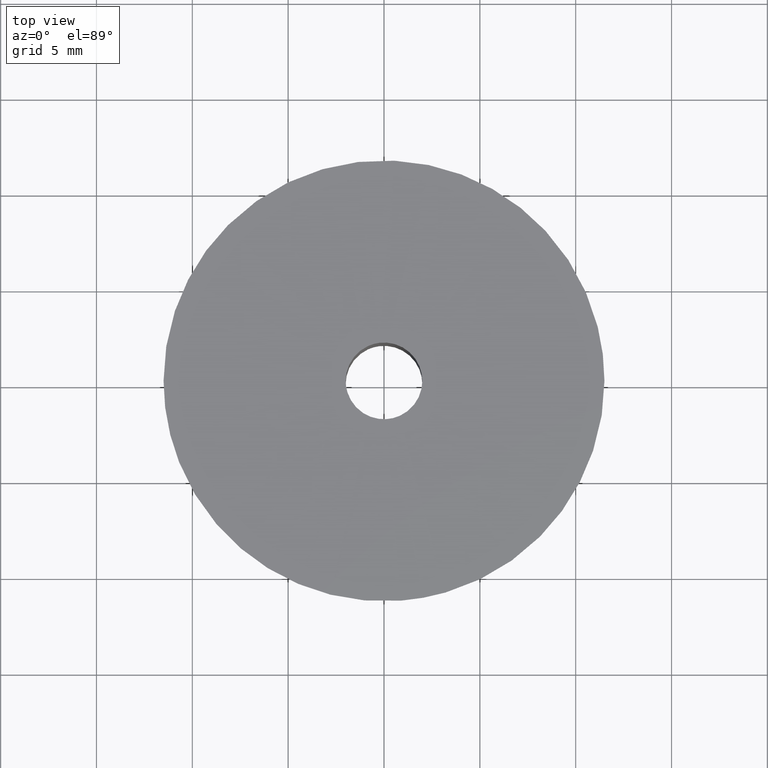
[diagram: clean part render]
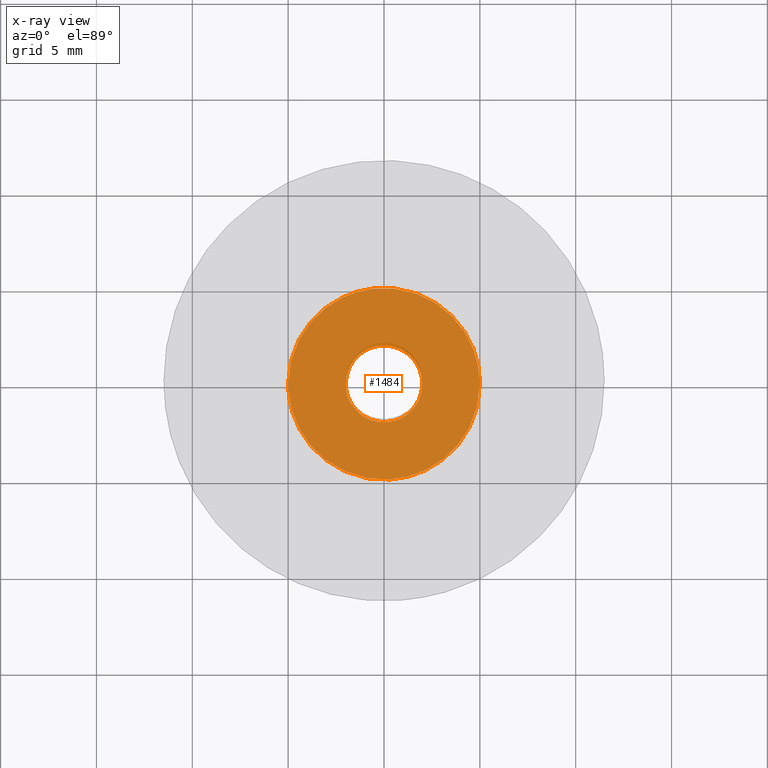
[diagram: x-ray — body ghosted, one internal face saturated and labeled with its STEP entity id]
A machine part, top view, then the same camera in x-ray: the body is ghosted and one INTERNAL B-rep face — a face not visible from any outside direction — is saturated and labeled: STEP entity #1484.
In plain terms, the highlighted face is a freeform B-spline surface patch.
Its self-contained STEP definition (entity closure, byte-faithful):
#754=CARTESIAN_POINT('',(-0.236065917800784,1.986019356009974,10.799999999999800));
#755=VERTEX_POINT('',#754);
#761=CARTESIAN_POINT('',(2.0,0.0,10.799999999999800));
#762=VERTEX_POINT('',#761);
#763=CARTESIAN_POINT('',(-0.236065917800784,1.986019356009974,10.799999999999798));
#764=CARTESIAN_POINT('',(-0.118446950060566,2.0,10.799999999999804));
#765=CARTESIAN_POINT('',(0.0,2.0,10.799999999999800));
#766=CARTESIAN_POINT('',(2.000000000000000,2.000000000000000,10.799999999999800));
#767=CARTESIAN_POINT('',(2.0,0.0,10.799999999999800));
#775=(BOUNDED_CURVE()B_SPLINE_CURVE(2,(#763,#764,#765,#766,#767),.UNSPECIFIED.,.F.,.U.)B_SPLINE_CURVE_WITH_KNOTS((3,2,3),(0.229562690640437,0.250000000000000,0.500000000000000),.UNSPECIFIED.)CURVE()GEOMETRIC_REPRESENTATION_ITEM()RATIONAL_B_SPLINE_CURVE((0.956027179761807,0.976056202711165,1.0,0.707106781186548,1.0))REPRESENTATION_ITEM(''));
#776=EDGE_CURVE('',#755,#762,#775,.T.);
#778=CARTESIAN_POINT('',(0.122097079102479,-1.996269596841730,10.799999999999800));
#779=VERTEX_POINT('',#778);
#780=CARTESIAN_POINT('',(2.0,0.0,10.799999999999800));
#781=CARTESIAN_POINT('',(2.000000000000000,-1.881412133749522,10.799999999999800));
#782=CARTESIAN_POINT('',(0.122097079102479,-1.996269596841730,10.799999999999802));
#790=(BOUNDED_CURVE()B_SPLINE_CURVE(2,(#780,#781,#782),.UNSPECIFIED.,.F.,.U.)B_SPLINE_CURVE_WITH_KNOTS((3,3),(0.500000000000000,0.739332962236305),.UNSPECIFIED.)CURVE()GEOMETRIC_REPRESENTATION_ITEM()RATIONAL_B_SPLINE_CURVE((1.0,0.719603993289801,0.976072041661064))REPRESENTATION_ITEM(''));
#791=EDGE_CURVE('',#762,#779,#790,.T.);
#865=CARTESIAN_POINT('',(-2.0,0.0,10.799999999999800));
#866=VERTEX_POINT('',#865);
#867=CARTESIAN_POINT('',(0.122097079102479,-1.996269596841730,10.799999999999802));
#868=CARTESIAN_POINT('',(0.061105526630035,-2.0,10.799999999999800));
#869=CARTESIAN_POINT('',(0.0,-2.0,10.799999999999800));
#870=CARTESIAN_POINT('',(-2.000000000000000,-2.000000000000000,10.799999999999800));
#871=CARTESIAN_POINT('',(-2.0,0.0,10.799999999999800));
#879=(BOUNDED_CURVE()B_SPLINE_CURVE(2,(#867,#868,#869,#870,#871),.UNSPECIFIED.,.F.,.U.)B_SPLINE_CURVE_WITH_KNOTS((3,2,3),(0.739332962236304,0.750000000000000,1.0),.UNSPECIFIED.)CURVE()GEOMETRIC_REPRESENTATION_ITEM()RATIONAL_B_SPLINE_CURVE((0.976072041661062,0.987502787896746,1.0,0.707106781186548,1.0))REPRESENTATION_ITEM(''));
#880=EDGE_CURVE('',#779,#866,#879,.T.);
#882=CARTESIAN_POINT('',(-2.0,0.0,10.799999999999800));
#883=CARTESIAN_POINT('',(-2.000000000000000,1.776351350111119,10.799999999999800));
#884=CARTESIAN_POINT('',(-0.236065917800784,1.986019356009974,10.799999999999798));
#892=(BOUNDED_CURVE()B_SPLINE_CURVE(2,(#882,#883,#884),.UNSPECIFIED.,.F.,.U.)B_SPLINE_CURVE_WITH_KNOTS((3,3),(0.0,0.229562690640437),.UNSPECIFIED.)CURVE()GEOMETRIC_REPRESENTATION_ITEM()RATIONAL_B_SPLINE_CURVE((1.0,0.731050578475383,0.956027179761807))REPRESENTATION_ITEM(''));
#893=EDGE_CURVE('',#866,#755,#892,.T.);
#925=CARTESIAN_POINT('',(-0.590168625237022,4.965047934690988,10.799999999999720));
#926=VERTEX_POINT('',#925);
#927=CARTESIAN_POINT('',(5.0,0.0,10.799999999999800));
#928=VERTEX_POINT('',#927);
#929=CARTESIAN_POINT('',(-0.590168625237022,4.965047934690989,10.799999999999727));
#930=CARTESIAN_POINT('',(-0.296119310767451,4.999999999999999,10.799999999999798));
#931=CARTESIAN_POINT('',(0.0,5.0,10.799999999999800));
#932=CARTESIAN_POINT('',(5.000000000000001,5.000000000000001,10.799999999999800));
#933=CARTESIAN_POINT('',(5.0,0.0,10.799999999999800));
#941=(BOUNDED_CURVE()B_SPLINE_CURVE(2,(#929,#930,#931,#932,#933),.UNSPECIFIED.,.F.,.U.)B_SPLINE_CURVE_WITH_KNOTS((3,2,3),(0.229562560247581,0.250000000000000,0.500000000000000),.UNSPECIFIED.)CURVE()GEOMETRIC_REPRESENTATION_ITEM()RATIONAL_B_SPLINE_CURVE((0.956026924186102,0.976056049946432,1.0,0.707106781186548,1.0))REPRESENTATION_ITEM(''));
#942=EDGE_CURVE('',#926,#928,#941,.T.);
#983=CARTESIAN_POINT('',(0.305234977263521,-4.990674464297897,10.799999999999571));
#984=VERTEX_POINT('',#983);
#990=CARTESIAN_POINT('',(5.0,0.0,10.799999999999800));
#991=CARTESIAN_POINT('',(4.999999999999999,-4.703537624338884,10.799999999999798));
#992=CARTESIAN_POINT('',(0.305234977263521,-4.990674464297897,10.799999999999562));
#1000=(BOUNDED_CURVE()B_SPLINE_CURVE(2,(#990,#991,#992),.UNSPECIFIED.,.F.,.U.)B_SPLINE_CURVE_WITH_KNOTS((3,3),(0.500000000000000,0.739333229166308),.UNSPECIFIED.)CURVE()GEOMETRIC_REPRESENTATION_ITEM()RATIONAL_B_SPLINE_CURVE((1.0,0.719603680561850,0.976072613743540))REPRESENTATION_ITEM(''));
#1001=EDGE_CURVE('',#928,#984,#1000,.T.);
#1024=CARTESIAN_POINT('',(-5.0,0.0,10.799999999999800));
#1025=VERTEX_POINT('',#1024);
#1026=CARTESIAN_POINT('',(-5.0,0.0,10.799999999999800));
#1027=CARTESIAN_POINT('',(-5.0,4.440874924842770,10.799999999999800));
#1028=CARTESIAN_POINT('',(-0.590168625237022,4.965047934690989,10.799999999999727));
#1036=(BOUNDED_CURVE()B_SPLINE_CURVE(2,(#1026,#1027,#1028),.UNSPECIFIED.,.F.,.U.)B_SPLINE_CURVE_WITH_KNOTS((3,3),(0.0,0.229562560247581),.UNSPECIFIED.)CURVE()GEOMETRIC_REPRESENTATION_ITEM()RATIONAL_B_SPLINE_CURVE((1.0,0.731050731240115,0.956026924186102))REPRESENTATION_ITEM(''));
#1037=EDGE_CURVE('',#1025,#926,#1036,.T.);
#1039=CARTESIAN_POINT('',(0.305234977263521,-4.990674464297897,10.799999999999562));
#1040=CARTESIAN_POINT('',(0.152759945464380,-5.0,10.799999999999804));
#1041=CARTESIAN_POINT('',(0.0,-5.0,10.799999999999800));
#1042=CARTESIAN_POINT('',(-5.000000000000001,-5.000000000000001,10.799999999999800));
#1043=CARTESIAN_POINT('',(-5.0,0.0,10.799999999999800));
#1051=(BOUNDED_CURVE()B_SPLINE_CURVE(2,(#1039,#1040,#1041,#1042,#1043),.UNSPECIFIED.,.F.,.U.)B_SPLINE_CURVE_WITH_KNOTS((3,2,3),(0.739333229166308,0.750000000000000,1.0),.UNSPECIFIED.)CURVE()GEOMETRIC_REPRESENTATION_ITEM()RATIONAL_B_SPLINE_CURVE((0.976072613743540,0.987503100624697,1.0,0.707106781186548,1.0))REPRESENTATION_ITEM(''));
#1052=EDGE_CURVE('',#984,#1025,#1051,.T.);
#1467=CARTESIAN_POINT('',(-5.499499980618060,-5.499378285062297,10.799999999999800));
#1468=CARTESIAN_POINT('',(5.499500248838961,-5.499378285062297,10.799999999999800));
#1469=CARTESIAN_POINT('',(-5.499499980618060,5.499409041059002,10.799999999999800));
#1470=CARTESIAN_POINT('',(5.499500248838961,5.499409041059002,10.799999999999800));
#1471=B_SPLINE_SURFACE_WITH_KNOTS('',1,1,((#1467,#1469),(#1468,#1470)),.UNSPECIFIED.,.F.,.F.,.U.,(2,2),(2,2),(0.0,10.999000229457019),(0.0,10.998787326121301),.UNSPECIFIED.);
#1472=ORIENTED_EDGE('',*,*,#1037,.T.);
#1473=ORIENTED_EDGE('',*,*,#942,.T.);
#1474=ORIENTED_EDGE('',*,*,#1001,.T.);
#1475=ORIENTED_EDGE('',*,*,#1052,.T.);
#1476=EDGE_LOOP('',(#1472,#1473,#1474,#1475));
#1477=FACE_OUTER_BOUND('',#1476,.T.);
#1478=ORIENTED_EDGE('',*,*,#791,.F.);
#1479=ORIENTED_EDGE('',*,*,#776,.F.);
#1480=ORIENTED_EDGE('',*,*,#893,.F.);
#1481=ORIENTED_EDGE('',*,*,#880,.F.);
#1482=EDGE_LOOP('',(#1478,#1479,#1480,#1481));
#1483=FACE_BOUND('',#1482,.T.);
#1484=ADVANCED_FACE('',(#1477,#1483),#1471,.F.);